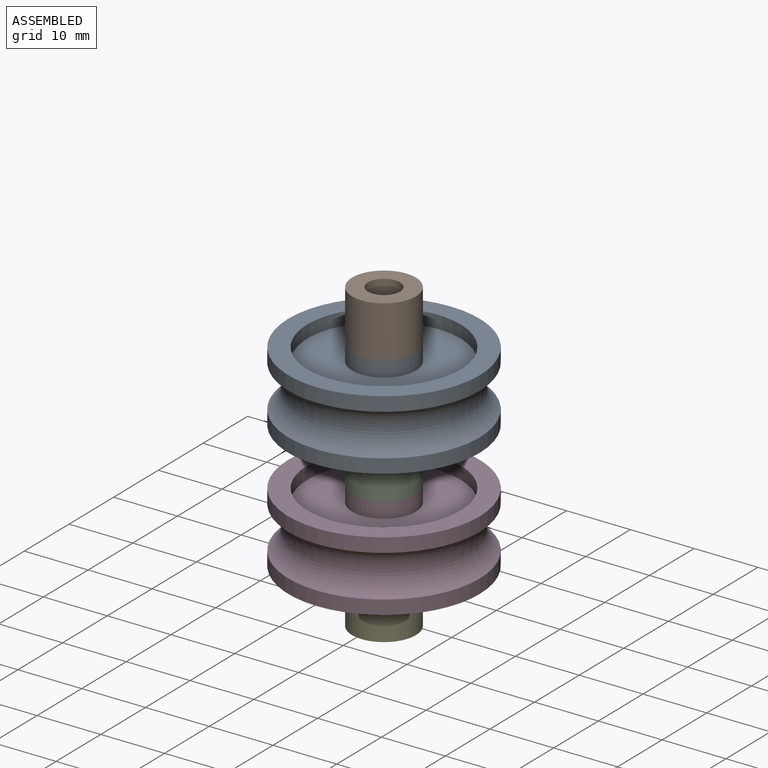
[diagram: assembled view]
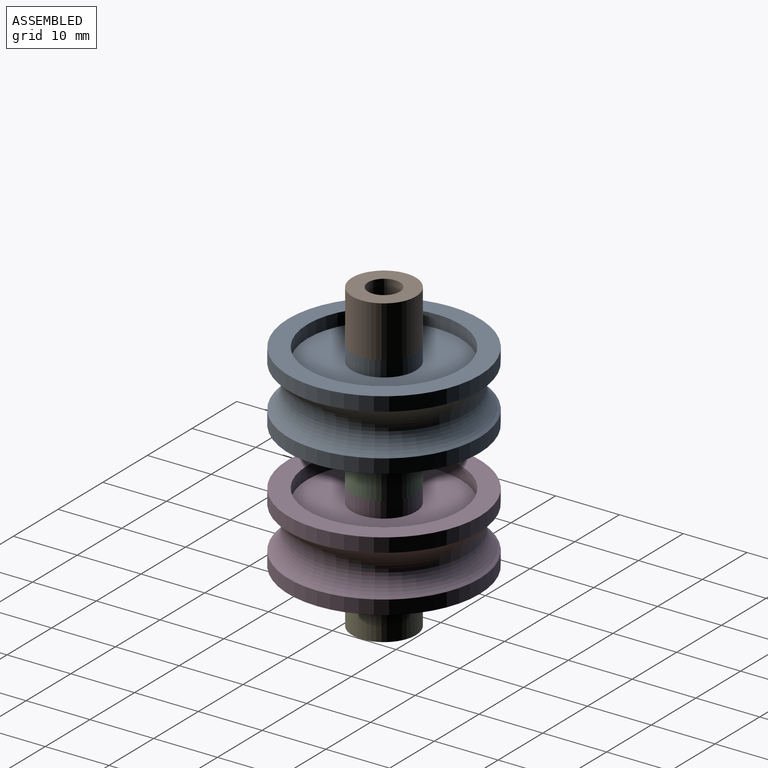
[diagram: assembled view, second angle]
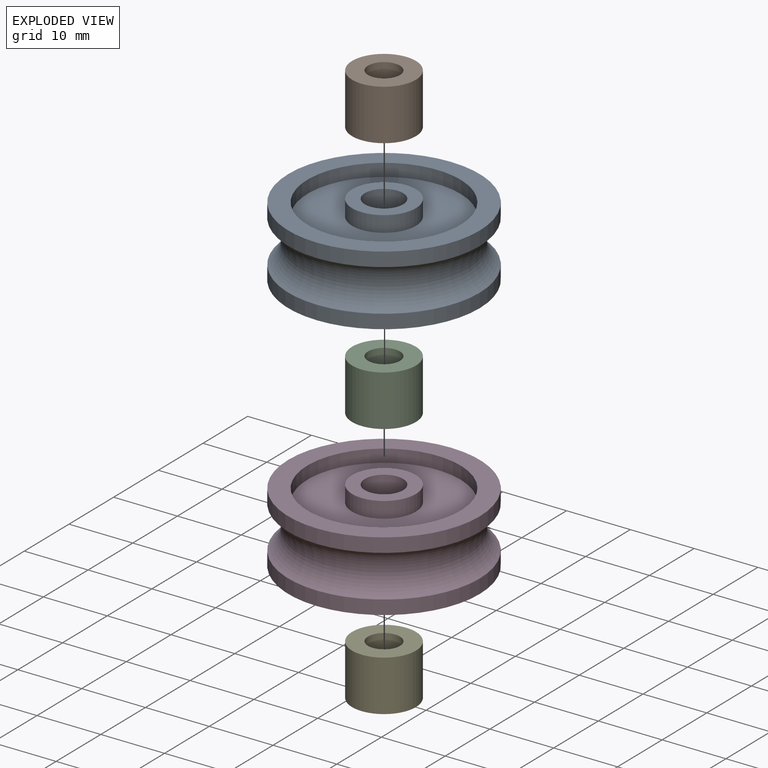
[diagram: exploded view]
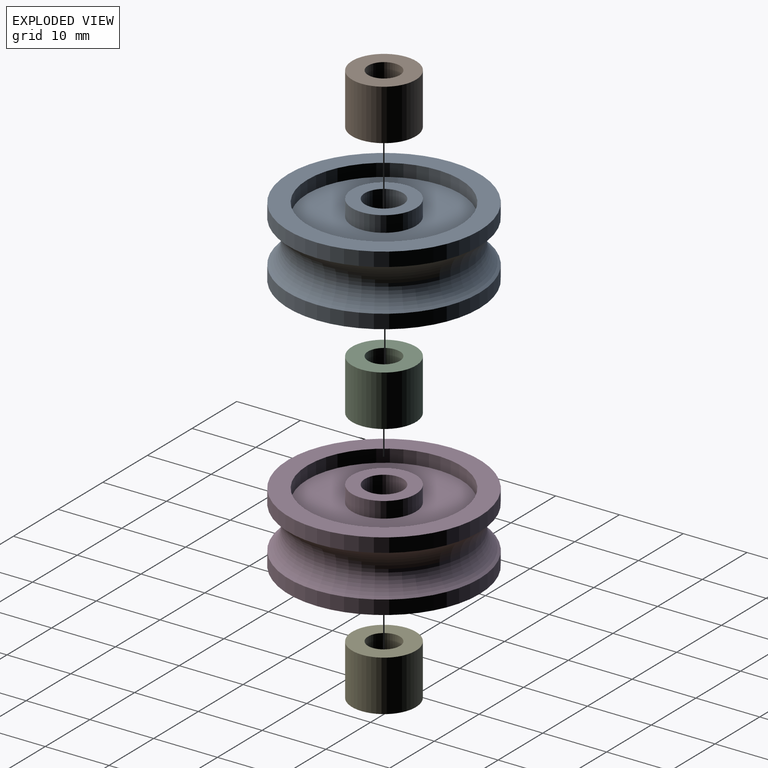
[diagram: exploded view, second angle]
ASSEMBLY  parts=5 mates=4
PART A: 14 faces, bbox 37.3x12x37.3 mm
  f0: torus R=17.25mm, axis (0,1,0), area 677.8mm2, adj f1,f8
  f1: cylinder r=15mm len=30mm, axis (0,1,0), area 206.7mm2, adj f0,f2
  f2: plane 30x30mm, normal (0,-1,0), area 254.5mm2, adj f1,f3
  f3: cylinder r=12mm len=24mm, axis (0,-1,0), area 150.8mm2, adj f2,f4
  f4: plane 24x24mm, normal (0,-1,0), area 373.8mm2, adj f3,f7
  f5: cylinder r=3mm len=12mm, axis (0,1,0), area 226.2mm2, adj f6,f12
  f6: plane 10x10mm, normal (0,-1,0), area 50.3mm2, adj f5,f7
  f7: cylinder r=5mm len=10mm, axis (0,1,0), area 78.5mm2, adj f4,f6
  f8: cylinder r=15mm len=30mm, axis (0,-1,0), area 206.7mm2, adj f0,f9
  f9: plane 30x30mm, normal (0,1,0), area 254.5mm2, adj f8,f10
  f10: cylinder r=12mm len=24mm, axis (0,1,0), area 150.8mm2, adj f9,f11
  f11: plane 24x24mm, normal (0,1,0), area 373.8mm2, adj f10,f13
  f12: plane 10x10mm, normal (0,1,0), area 50.3mm2, adj f5,f13
  f13: cylinder r=5mm len=10mm, axis (0,-1,0), area 78.5mm2, adj f11,f12
PART B: 4 faces, bbox 10x10x8 mm
  f0: cylinder r=2.5mm len=8mm, axis (0,0,-1), area 125.7mm2, adj f2,f3
  f1: cylinder r=5mm len=10mm, axis (0,0,-1), area 251.3mm2, adj f2,f3
  f2: plane 10x10mm, normal (0,0,1), area 58.9mm2, adj f0,f1
  f3: plane 10x10mm, normal (0,0,-1), area 58.9mm2, adj f0,f1
PART C: same geometry as B
PART D: same geometry as A
PART E: same geometry as B
PLACE A rot(axis=(-1,0,0),90deg) t=(-25.42,-11.68,34.49)mm
PLACE B t=(-25.42,-11.68,40.49)mm
PLACE C rot(axis=(1,0,0),0deg) t=(-25.42,-11.68,20.49)mm
PLACE D rot(axis=(-1,0,0),90deg) t=(-25.42,-11.68,14.49)mm
PLACE E t=(-25.42,-11.68,0.49)mm
MATE fastened C.f0 <-> D.f5  axis (0,0,-1) through (-25.42,-11.68,20.49)mm
MATE fastened B.f0 <-> A.f7  axis (0,0,-1) through (-25.42,-11.68,40.49)mm
MATE revolute A.f5 <-> C.f1  axis (0,0,-1) through (-25.42,-11.68,28.49)mm
MATE revolute D.f5 <-> E.f1  axis (0,0,-1) through (-25.42,-11.68,8.49)mm
